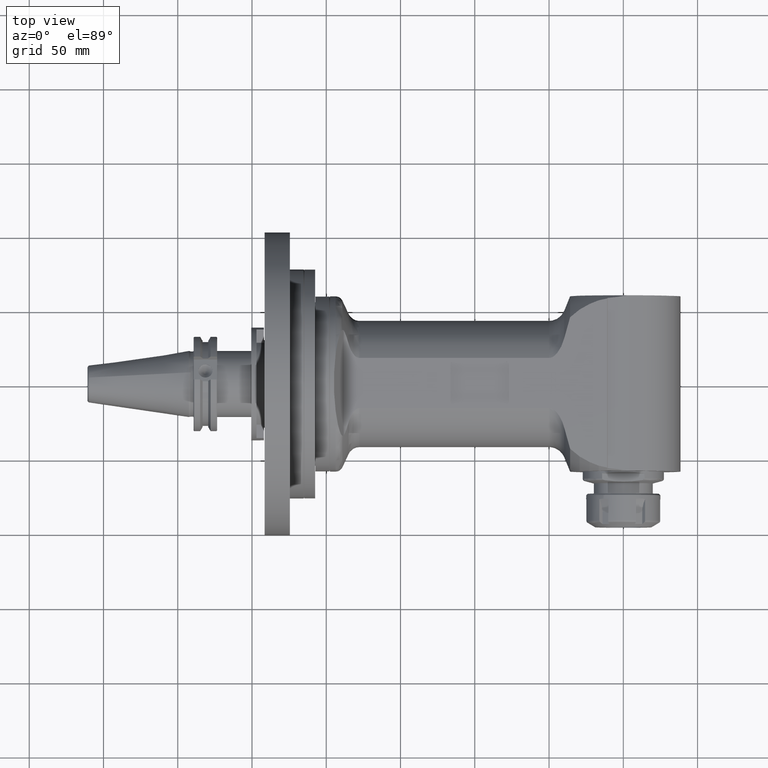
[diagram: clean part render]
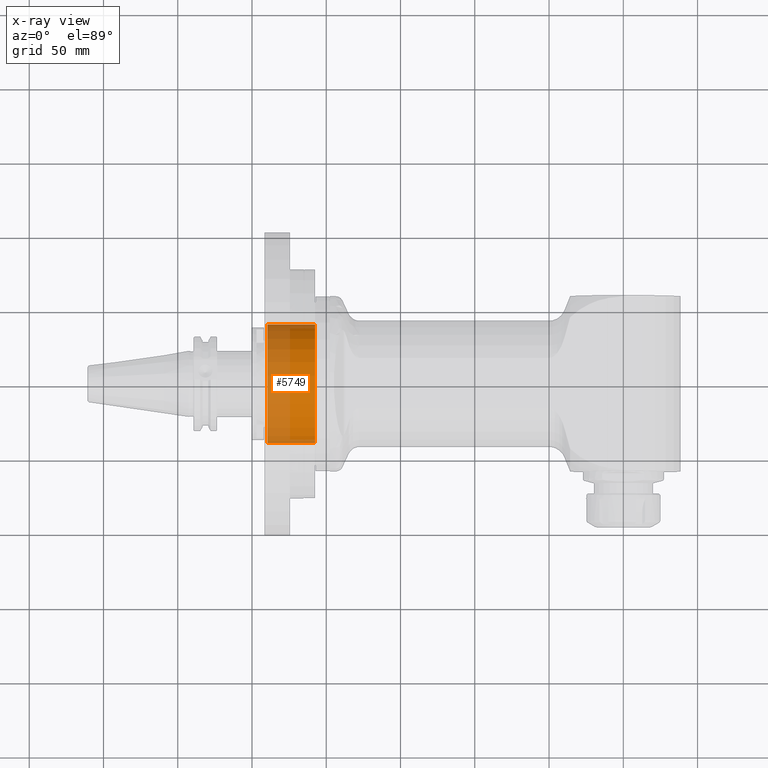
[diagram: x-ray — body ghosted, one internal face saturated and labeled with its STEP entity id]
A machine part, top view, then the same camera in x-ray: the body is ghosted and one INTERNAL B-rep face — a face not visible from any outside direction — is saturated and labeled: STEP entity #5749.
In plain terms, the highlighted cylindrical surface (bore or boss wall) has radius 40 mm, axis along (-1, 0, 0).
Its self-contained STEP definition (entity closure, byte-faithful):
#72=CYLINDRICAL_SURFACE('',#6232,40.);
#513=FACE_OUTER_BOUND('',#887,.T.);
#887=EDGE_LOOP('',(#3987,#3988,#3989,#3990,#3991));
#1361=CIRCLE('',#6231,40.);
#1362=CIRCLE('',#6233,40.);
#1363=CIRCLE('',#6234,40.);
#1700=LINE('',#9283,#2044);
#2044=VECTOR('',#7076,40.);
#2453=VERTEX_POINT('',#9276);
#2454=VERTEX_POINT('',#9279);
#2455=VERTEX_POINT('',#9280);
#3054=EDGE_CURVE('',#2453,#2453,#1361,.T.);
#3055=EDGE_CURVE('',#2454,#2455,#1362,.T.);
#3056=EDGE_CURVE('',#2455,#2454,#1363,.T.);
#3057=EDGE_CURVE('',#2455,#2453,#1700,.T.);
#3987=ORIENTED_EDGE('',*,*,#3055,.F.);
#3988=ORIENTED_EDGE('',*,*,#3056,.F.);
#3989=ORIENTED_EDGE('',*,*,#3057,.T.);
#3990=ORIENTED_EDGE('',*,*,#3054,.F.);
#3991=ORIENTED_EDGE('',*,*,#3057,.F.);
#5749=ADVANCED_FACE('',(#513),#72,.T.);
#6231=AXIS2_PLACEMENT_3D('',#9277,#7068,#7069);
#6232=AXIS2_PLACEMENT_3D('',#9278,#7070,#7071);
#6233=AXIS2_PLACEMENT_3D('',#9281,#7072,#7073);
#6234=AXIS2_PLACEMENT_3D('',#9282,#7074,#7075);
#7068=DIRECTION('center_axis',(1.,0.,0.));
#7069=DIRECTION('ref_axis',(0.,1.,0.));
#7070=DIRECTION('center_axis',(-1.,0.,0.));
#7071=DIRECTION('ref_axis',(0.,1.,0.));
#7072=DIRECTION('center_axis',(-1.,0.,0.));
#7073=DIRECTION('ref_axis',(0.,-1.,0.));
#7074=DIRECTION('center_axis',(-1.,0.,0.));
#7075=DIRECTION('ref_axis',(0.,-1.,0.));
#7076=DIRECTION('',(1.,0.,0.));
#9276=CARTESIAN_POINT('',(-207.5,-40.,4.89858719658941E-15));
#9277=CARTESIAN_POINT('Origin',(-207.5,0.,0.));
#9278=CARTESIAN_POINT('Origin',(-224.5,0.,0.));
#9279=CARTESIAN_POINT('',(-239.7679491924,40.,0.));
#9280=CARTESIAN_POINT('',(-239.7679491924,-40.,4.89858719658941E-15));
#9281=CARTESIAN_POINT('Origin',(-239.7679491924,0.,0.));
#9282=CARTESIAN_POINT('Origin',(-239.7679491924,0.,0.));
#9283=CARTESIAN_POINT('',(-224.5,-40.,4.89858719658941E-15));